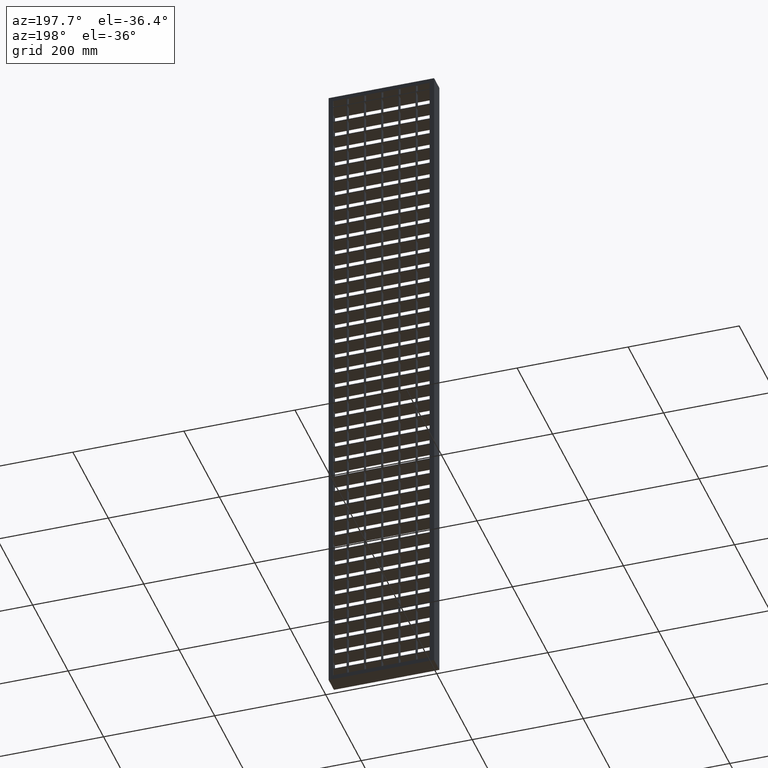
[diagram: clean part render]
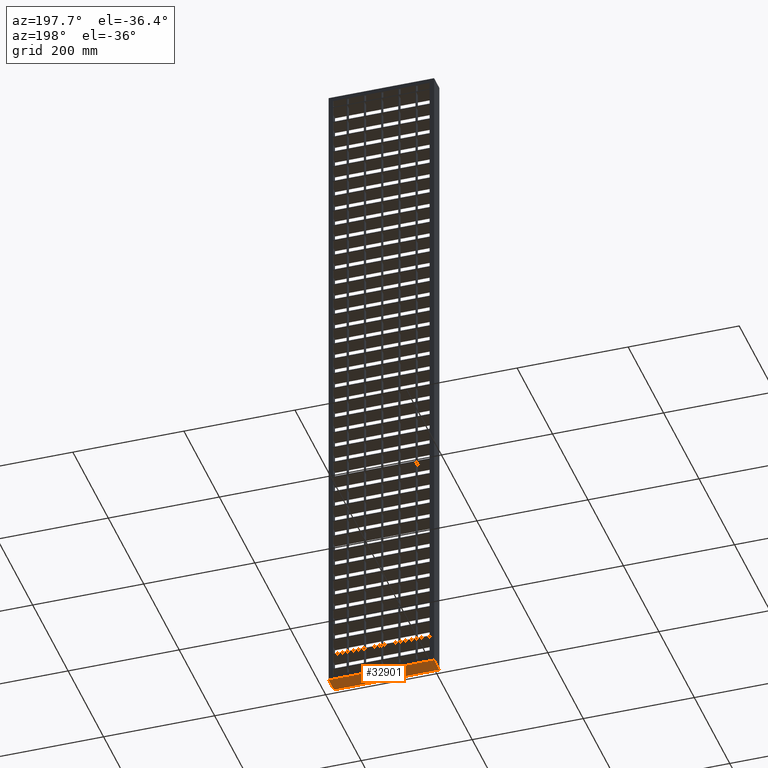
[diagram: same view with one face highlighted and labeled with its STEP entity id]
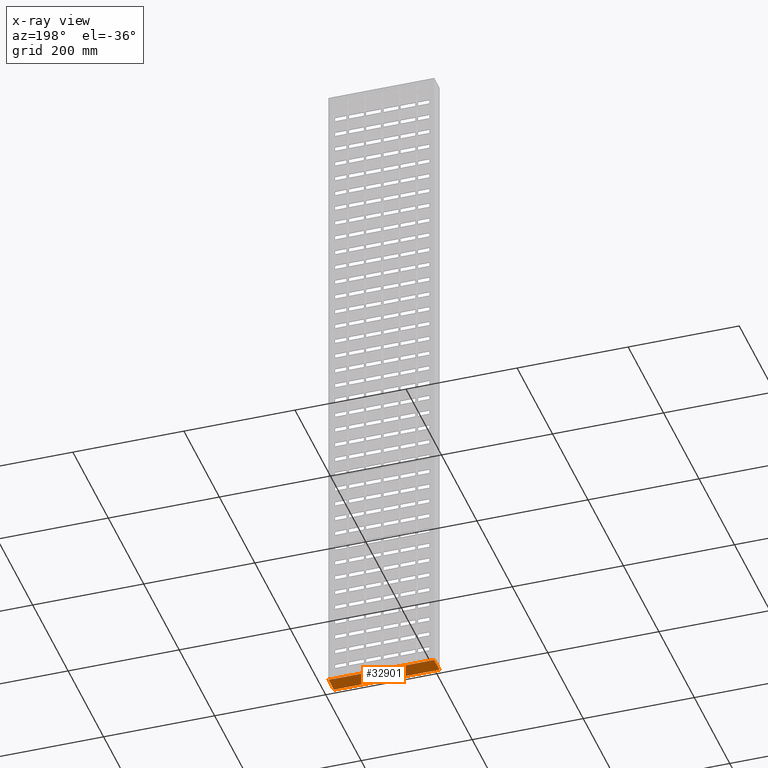
[diagram: x-ray of the same camera — body ghosted, the highlighted face saturated]
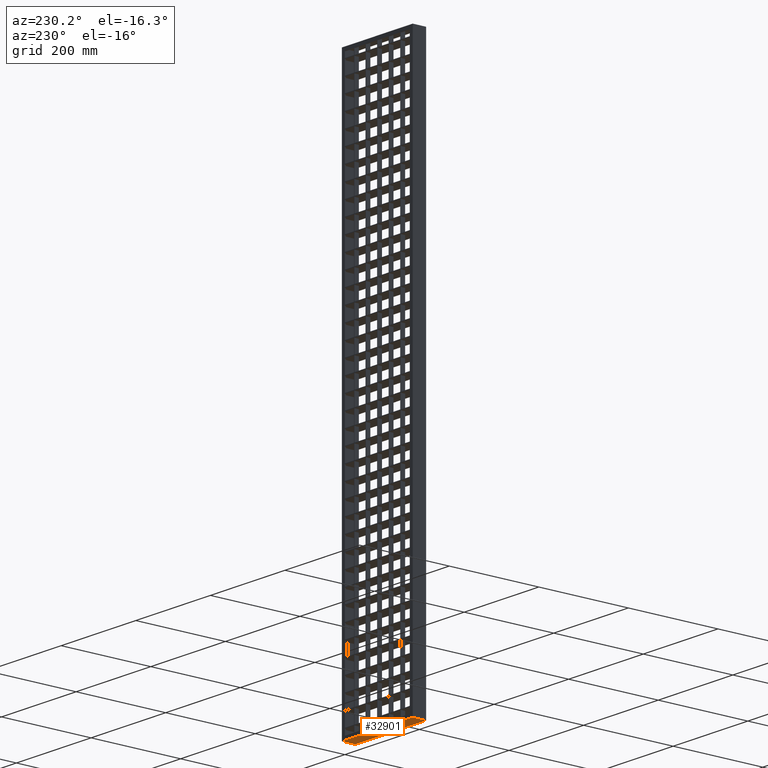
[diagram: same view with one face highlighted and labeled with its STEP entity id]
A machine part, auxiliary view. The second image highlights one B-rep face of the part: STEP entity #32901.
The next image is the same camera in x-ray: the body ghosted, the highlighted face saturated — about 0% of this face is hidden behind the body in this view.
A second angle (auxiliary view) of the same face is appended — the face is thin or edge-on in the first view.
In plain terms, the highlighted planar face has unit normal (-0, 0, 1).
Its self-contained STEP definition (entity closure, byte-faithful):
#2047 = EDGE_CURVE ( 'NONE', #16864, #29913, #20922, .T. ) ;
#2685 = EDGE_CURVE ( 'NONE', #19767, #29913, #31017, .T. ) ;
#2918 = LINE ( 'NONE', #27800, #28847 ) ;
#3795 = CARTESIAN_POINT ( 'NONE',  ( 189.9999999999999400, 15.00000000000000000, -1240.000000000000000 ) ) ;
#4898 = CARTESIAN_POINT ( 'NONE',  ( -4.898587196589410700E-015, 15.00000000000000000, -1240.000000000000000 ) ) ;
#5313 = DIRECTION ( 'NONE',  ( 1.000000000000000000, 0.0000000000000000000, 0.0000000000000000000 ) ) ;
#7095 = CARTESIAN_POINT ( 'NONE',  ( 4.286263797015736500E-015, -15.00000000000000000, -1240.000000000000000 ) ) ;
#8343 = CARTESIAN_POINT ( 'NONE',  ( 189.9999999999999700, 14.99999999999995900, -1240.000000000000000 ) ) ;
#9210 = PLANE ( 'NONE',  #35730 ) ;
#10449 = VECTOR ( 'NONE', #27040, 1000.000000000000000 ) ;
#11310 = VERTEX_POINT ( 'NONE', #7095 ) ;
#12262 = VECTOR ( 'NONE', #30954, 1000.000000000000000 ) ;
#16300 = ORIENTED_EDGE ( 'NONE', *, *, #21906, .F. ) ;
#16864 = VERTEX_POINT ( 'NONE', #35927 ) ;
#16910 = EDGE_CURVE ( 'NONE', #19767, #11310, #27752, .T. ) ;
#18066 = ORIENTED_EDGE ( 'NONE', *, *, #2685, .T. ) ;
#18399 = DIRECTION ( 'NONE',  ( 1.000000000000000000, 0.0000000000000000000, 0.0000000000000000000 ) ) ;
#18869 = CARTESIAN_POINT ( 'NONE',  ( -4.898587196589417000E-015, 15.00000000000001800, -1240.000000000000000 ) ) ;
#19767 = VERTEX_POINT ( 'NONE', #32455 ) ;
#20922 = LINE ( 'NONE', #8343, #12262 ) ;
#21906 = EDGE_CURVE ( 'NONE', #11310, #16864, #2918, .T. ) ;
#23776 = CARTESIAN_POINT ( 'NONE',  ( -4.898587196589417000E-015, 15.00000000000001800, -1240.000000000000000 ) ) ;
#25893 = VECTOR ( 'NONE', #5313, 1000.000000000000000 ) ;
#27040 = DIRECTION ( 'NONE',  ( 3.061616997868382600E-016, -1.000000000000000000, 3.061616997868382600E-016 ) ) ;
#27752 = LINE ( 'NONE', #23776, #10449 ) ;
#27800 = CARTESIAN_POINT ( 'NONE',  ( 4.286263797015736500E-015, -15.00000000000000000, -1240.000000000000000 ) ) ;
#28836 = DIRECTION ( 'NONE',  ( 0.0000000000000000000, -1.000000000000000000, 3.061616997868382600E-016 ) ) ;
#28847 = VECTOR ( 'NONE', #18399, 1000.000000000000000 ) ;
#29913 = VERTEX_POINT ( 'NONE', #3795 ) ;
#30954 = DIRECTION ( 'NONE',  ( 3.061616997868382600E-016, 1.000000000000000000, -3.061616997868382600E-016 ) ) ;
#31017 = LINE ( 'NONE', #4898, #25893 ) ;
#32455 = CARTESIAN_POINT ( 'NONE',  ( -4.898587196589410700E-015, 15.00000000000000000, -1240.000000000000000 ) ) ;
#32901 = ADVANCED_FACE ( 'NONE', ( #40610 ), #9210, .F. ) ;
#34431 = ORIENTED_EDGE ( 'NONE', *, *, #16910, .F. ) ;
#35701 = EDGE_LOOP ( 'NONE', ( #39885, #16300, #34431, #18066 ) ) ;
#35730 = AXIS2_PLACEMENT_3D ( 'NONE', #18869, #38260, #28836 ) ;
#35927 = CARTESIAN_POINT ( 'NONE',  ( 189.9999999999998900, -15.00000000000000000, -1240.000000000000000 ) ) ;
#38260 = DIRECTION ( 'NONE',  ( -0.0000000000000000000, 3.061616997868382600E-016, 1.000000000000000000 ) ) ;
#39885 = ORIENTED_EDGE ( 'NONE', *, *, #2047, .F. ) ;
#40610 = FACE_OUTER_BOUND ( 'NONE', #35701, .T. ) ;